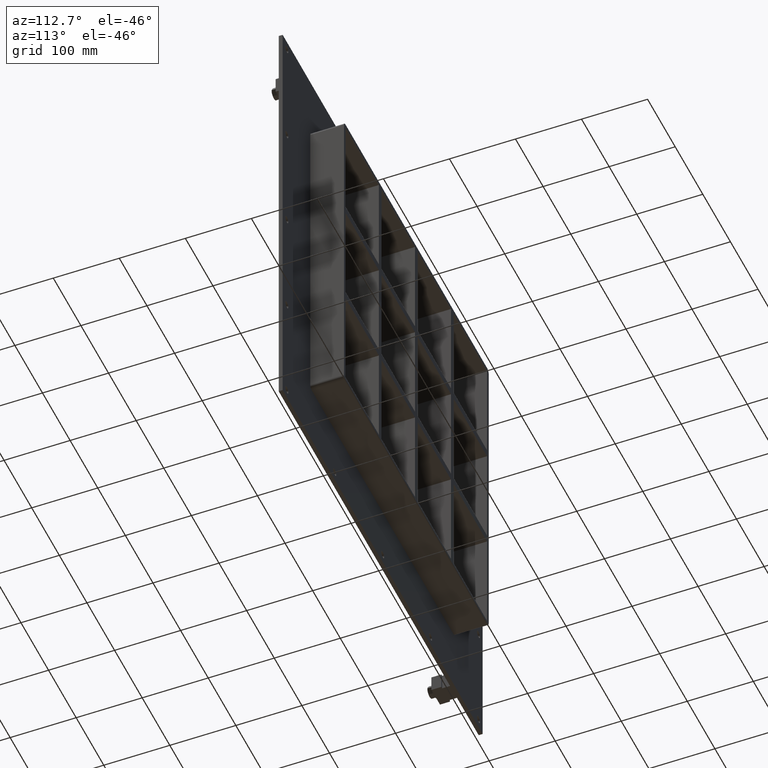
[diagram: clean part render]
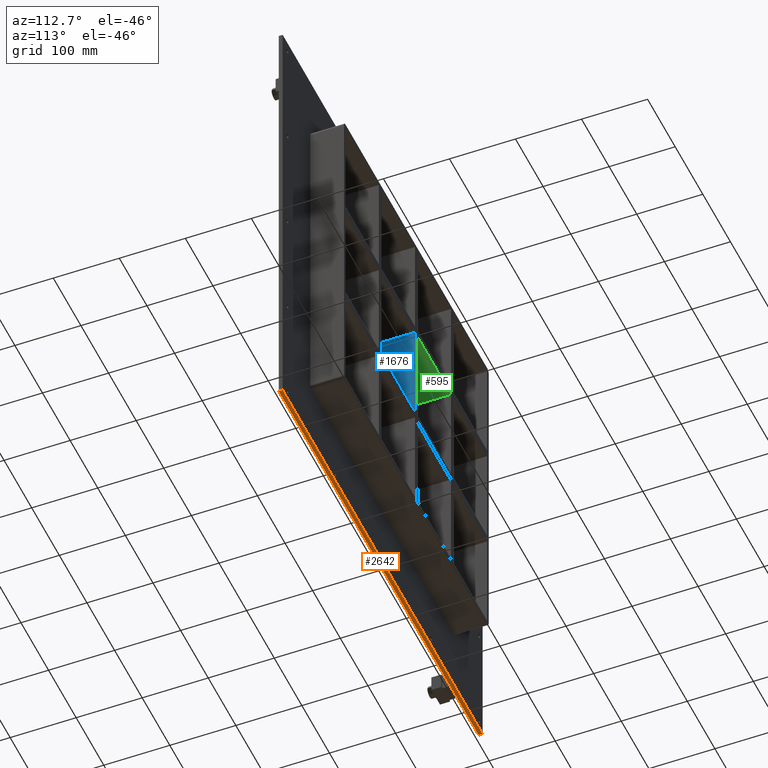
[diagram: same view with three faces highlighted in distinct colors, each labeled with its STEP entity id]
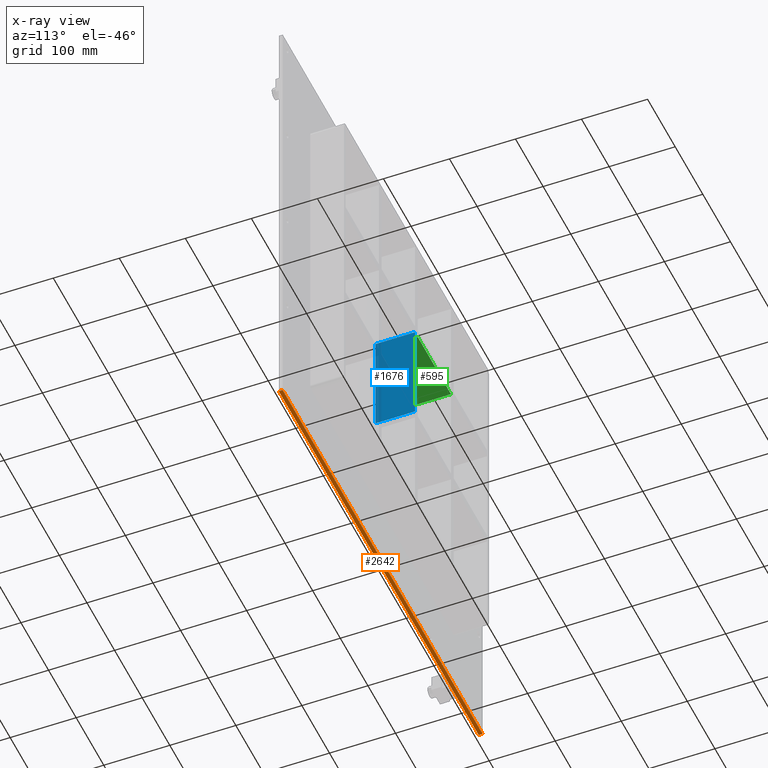
[diagram: x-ray of the same camera — body ghosted, the three highlighted faces saturated]
A machine part, auxiliary view with three faces highlighted in distinct colors.
The next image is the same camera in x-ray (body ghosted, the three faces saturated) — at least one of them is partly hidden behind the body in this view.
Their STEP definitions:

[orange] entity #2642 — the highlighted planar face has unit normal (0, 0, -1).
#2303=CARTESIAN_POINT('',(362.0,6.000000000000001,-357.25));
#2304=VERTEX_POINT('',#2303);
#2311=CARTESIAN_POINT('',(-362.0,6.000000000000001,-357.25));
#2312=VERTEX_POINT('',#2311);
#2313=CARTESIAN_POINT('',(361.99999999999994,6.000000000000001,-357.25));
#2314=DIRECTION('',(-1.0,0.0,0.0));
#2315=VECTOR('',#2314,724.0);
#2316=LINE('',#2313,#2315);
#2317=EDGE_CURVE('',#2304,#2312,#2316,.T.);
#2461=CARTESIAN_POINT('',(-362.0,0.0,-357.25));
#2462=VERTEX_POINT('',#2461);
#2469=CARTESIAN_POINT('',(361.99999999999994,0.0,-357.25));
#2470=VERTEX_POINT('',#2469);
#2471=CARTESIAN_POINT('',(361.99999999999994,0.0,-357.25));
#2472=DIRECTION('',(-1.0,0.0,0.0));
#2473=VECTOR('',#2472,724.0);
#2474=LINE('',#2471,#2473);
#2475=EDGE_CURVE('',#2470,#2462,#2474,.T.);
#2617=CARTESIAN_POINT('',(-362.0,0.0,-357.25));
#2618=DIRECTION('',(0.0,1.0,0.0));
#2619=VECTOR('',#2618,6.000000000000001);
#2620=LINE('',#2617,#2619);
#2621=EDGE_CURVE('',#2462,#2312,#2620,.T.);
#2626=CARTESIAN_POINT('',(361.99999999999994,0.0,-357.25));
#2627=DIRECTION('',(0.0,0.0,-1.0));
#2628=DIRECTION('',(-1.0,0.0,0.0));
#2629=AXIS2_PLACEMENT_3D('',#2626,#2627,#2628);
#2630=PLANE('',#2629);
#2631=ORIENTED_EDGE('',*,*,#2475,.T.);
#2632=ORIENTED_EDGE('',*,*,#2621,.T.);
#2633=ORIENTED_EDGE('',*,*,#2317,.F.);
#2634=CARTESIAN_POINT('',(361.99999999999994,0.0,-357.25));
#2635=DIRECTION('',(0.0,1.0,0.0));
#2636=VECTOR('',#2635,6.000000000000001);
#2637=LINE('',#2634,#2636);
#2638=EDGE_CURVE('',#2470,#2304,#2637,.T.);
#2639=ORIENTED_EDGE('',*,*,#2638,.F.);
#2640=EDGE_LOOP('',(#2631,#2632,#2633,#2639));
#2641=FACE_OUTER_BOUND('',#2640,.T.);
#2642=ADVANCED_FACE('',(#2641),#2630,.T.);

[blue] entity #1676 — the highlighted planar face has unit normal (1, 0, 0).
#651=CARTESIAN_POINT('',(5.000000000007283,-3.0,79.749999999989171));
#652=VERTEX_POINT('',#651);
#659=CARTESIAN_POINT('',(5.000000000007283,57.0,79.749999999989171));
#660=VERTEX_POINT('',#659);
#661=CARTESIAN_POINT('',(5.000000000007283,57.0,79.749999999989186));
#662=DIRECTION('',(0.0,-1.0,0.0));
#663=VECTOR('',#662,60.0);
#664=LINE('',#661,#663);
#665=EDGE_CURVE('',#660,#652,#664,.T.);
#1291=CARTESIAN_POINT('',(5.000000000007283,57.0,-79.749999999999062));
#1292=VERTEX_POINT('',#1291);
#1293=CARTESIAN_POINT('',(5.000000000007283,57.0,79.749999999989171));
#1294=DIRECTION('',(0.0,0.0,-1.0));
#1295=VECTOR('',#1294,159.49999999998823);
#1296=LINE('',#1293,#1295);
#1297=EDGE_CURVE('',#660,#1292,#1296,.T.);
#1653=CARTESIAN_POINT('',(5.000000000007283,-3.0,251.25000000000003));
#1654=DIRECTION('',(1.0,0.0,0.0));
#1655=DIRECTION('',(0.0,0.0,-1.0));
#1656=AXIS2_PLACEMENT_3D('',#1653,#1654,#1655);
#1657=PLANE('',#1656);
#1658=ORIENTED_EDGE('',*,*,#665,.T.);
#1659=CARTESIAN_POINT('',(5.000000000007283,-3.0,-79.749999999999062));
#1660=VERTEX_POINT('',#1659);
#1661=CARTESIAN_POINT('',(5.000000000007283,-3.0,79.749999999989171));
#1662=DIRECTION('',(0.0,0.0,-1.0));
#1663=VECTOR('',#1662,159.49999999998823);
#1664=LINE('',#1661,#1663);
#1665=EDGE_CURVE('',#652,#1660,#1664,.T.);
#1666=ORIENTED_EDGE('',*,*,#1665,.T.);
#1667=CARTESIAN_POINT('',(5.000000000007283,57.0,-79.749999999999076));
#1668=DIRECTION('',(0.0,-1.0,0.0));
#1669=VECTOR('',#1668,60.0);
#1670=LINE('',#1667,#1669);
#1671=EDGE_CURVE('',#1292,#1660,#1670,.T.);
#1672=ORIENTED_EDGE('',*,*,#1671,.F.);
#1673=ORIENTED_EDGE('',*,*,#1297,.F.);
#1674=EDGE_LOOP('',(#1658,#1666,#1672,#1673));
#1675=FACE_OUTER_BOUND('',#1674,.T.);
#1676=ADVANCED_FACE('',(#1675),#1657,.T.);

[green] entity #595 — the highlighted planar face has unit normal (0, 0, -1).
#556=CARTESIAN_POINT('',(256.00000000000364,-3.0,79.749999999989228));
#557=DIRECTION('',(0.0,0.0,-1.0));
#558=DIRECTION('',(-1.0,0.0,0.0));
#559=AXIS2_PLACEMENT_3D('',#556,#557,#558);
#560=PLANE('',#559);
#561=CARTESIAN_POINT('',(-4.999999999999076,-3.0,79.749999999989171));
#562=VERTEX_POINT('',#561);
#563=CARTESIAN_POINT('',(-4.999999999999076,57.0,79.749999999989171));
#564=VERTEX_POINT('',#563);
#565=CARTESIAN_POINT('',(-4.999999999999059,-3.0,79.749999999989171));
#566=DIRECTION('',(0.0,1.0,0.0));
#567=VECTOR('',#566,60.0);
#568=LINE('',#565,#567);
#569=EDGE_CURVE('',#562,#564,#568,.T.);
#570=ORIENTED_EDGE('',*,*,#569,.F.);
#571=CARTESIAN_POINT('',(-125.49999999999272,-3.0,79.749999999989143));
#572=VERTEX_POINT('',#571);
#573=CARTESIAN_POINT('',(-4.999999999999091,-3.0,79.749999999989171));
#574=DIRECTION('',(-1.0,0.0,0.0));
#575=VECTOR('',#574,120.49999999999363);
#576=LINE('',#573,#575);
#577=EDGE_CURVE('',#562,#572,#576,.T.);
#578=ORIENTED_EDGE('',*,*,#577,.T.);
#579=CARTESIAN_POINT('',(-125.49999999999272,57.0,79.749999999989143));
#580=VERTEX_POINT('',#579);
#581=CARTESIAN_POINT('',(-125.49999999999271,57.0,79.749999999989157));
#582=DIRECTION('',(0.0,-1.0,0.0));
#583=VECTOR('',#582,60.0);
#584=LINE('',#581,#583);
#585=EDGE_CURVE('',#580,#572,#584,.T.);
#586=ORIENTED_EDGE('',*,*,#585,.F.);
#587=CARTESIAN_POINT('',(-4.999999999999091,57.0,79.749999999989171));
#588=DIRECTION('',(-1.0,0.0,0.0));
#589=VECTOR('',#588,120.49999999999363);
#590=LINE('',#587,#589);
#591=EDGE_CURVE('',#564,#580,#590,.T.);
#592=ORIENTED_EDGE('',*,*,#591,.F.);
#593=EDGE_LOOP('',(#570,#578,#586,#592));
#594=FACE_OUTER_BOUND('',#593,.T.);
#595=ADVANCED_FACE('',(#594),#560,.T.);